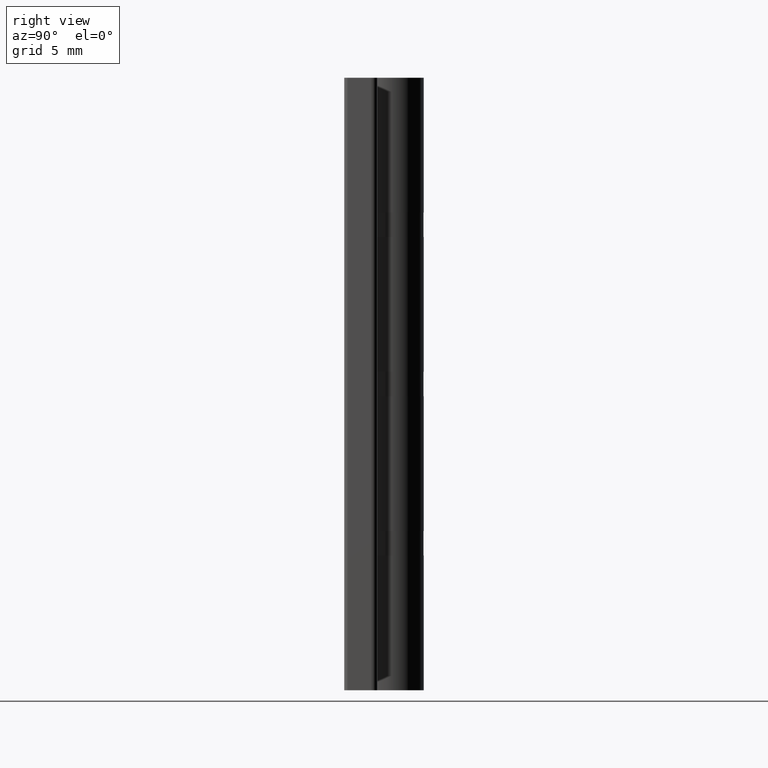
[diagram: clean part render]
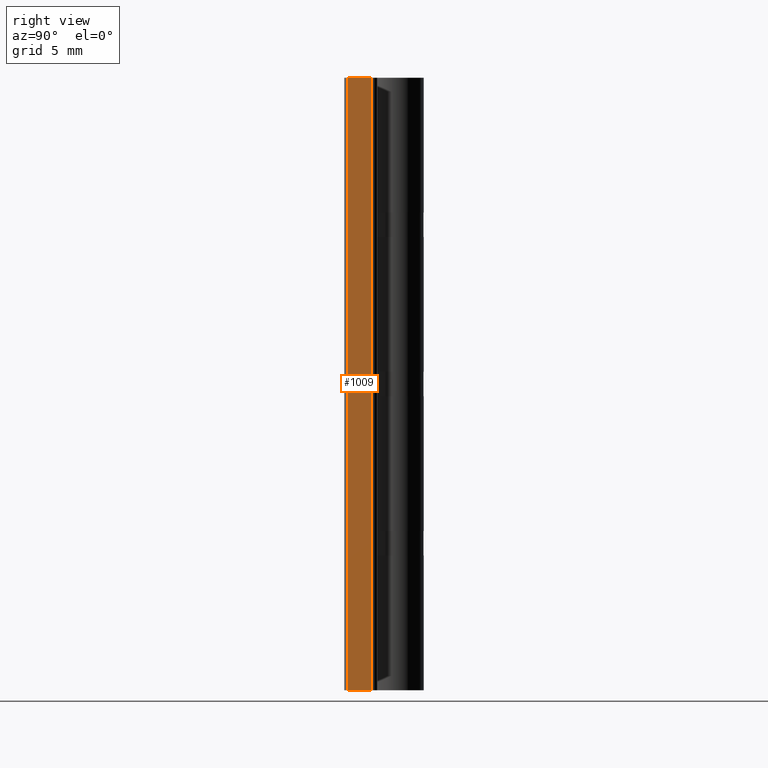
[diagram: same view with one face highlighted and labeled with its STEP entity id]
A machine part, right view. The second image highlights one B-rep face of the part: STEP entity #1009.
In plain terms, the highlighted planar face has unit normal (1, 0, 0).
Its self-contained STEP definition (entity closure, byte-faithful):
#208=FACE_OUTER_BOUND('',#286,.T.);
#286=EDGE_LOOP('',(#882,#883,#884,#885));
#378=LINE('',#1696,#452);
#379=LINE('',#1705,#453);
#381=LINE('',#1709,#455);
#382=LINE('',#1710,#456);
#452=VECTOR('',#1381,1.9);
#453=VECTOR('',#1392,50.);
#455=VECTOR('',#1396,1.9);
#456=VECTOR('',#1397,50.);
#540=VERTEX_POINT('',#1693);
#541=VERTEX_POINT('',#1695);
#544=VERTEX_POINT('',#1703);
#545=VERTEX_POINT('',#1708);
#661=EDGE_CURVE('',#541,#540,#378,.T.);
#665=EDGE_CURVE('',#544,#540,#379,.T.);
#667=EDGE_CURVE('',#545,#544,#381,.T.);
#668=EDGE_CURVE('',#541,#545,#382,.T.);
#882=ORIENTED_EDGE('',*,*,#665,.F.);
#883=ORIENTED_EDGE('',*,*,#667,.F.);
#884=ORIENTED_EDGE('',*,*,#668,.F.);
#885=ORIENTED_EDGE('',*,*,#661,.T.);
#962=PLANE('',#1117);
#1009=ADVANCED_FACE('',(#208),#962,.T.);
#1117=AXIS2_PLACEMENT_3D('',#1707,#1394,#1395);
#1381=DIRECTION('',(0.,-1.,0.));
#1392=DIRECTION('',(0.,0.,1.));
#1394=DIRECTION('center_axis',(1.,0.,0.));
#1395=DIRECTION('ref_axis',(0.,-1.,0.));
#1396=DIRECTION('',(0.,-1.,0.));
#1397=DIRECTION('',(0.,0.,-1.));
#1693=CARTESIAN_POINT('',(16.,-3.05,0.));
#1695=CARTESIAN_POINT('',(16.,-1.15,0.));
#1696=CARTESIAN_POINT('',(16.,-0.649999999999999,0.));
#1703=CARTESIAN_POINT('',(16.,-3.05,-50.));
#1705=CARTESIAN_POINT('',(16.,-3.05,0.));
#1707=CARTESIAN_POINT('Origin',(16.,-0.649999999999999,0.));
#1708=CARTESIAN_POINT('',(16.,-1.15,-50.));
#1709=CARTESIAN_POINT('',(16.,-0.649999999999999,-50.));
#1710=CARTESIAN_POINT('',(16.,-1.15,0.));